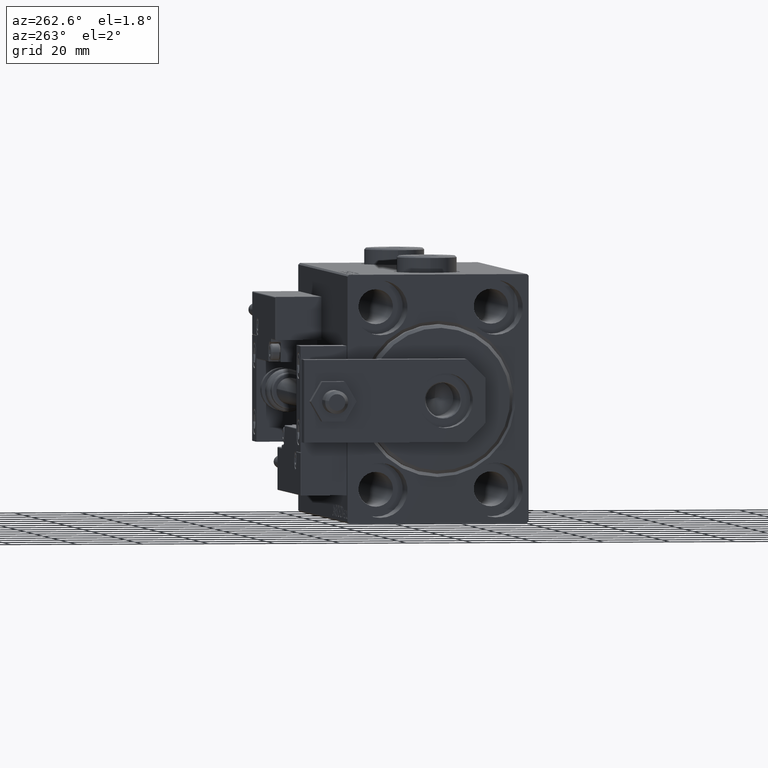
[diagram: clean part render]
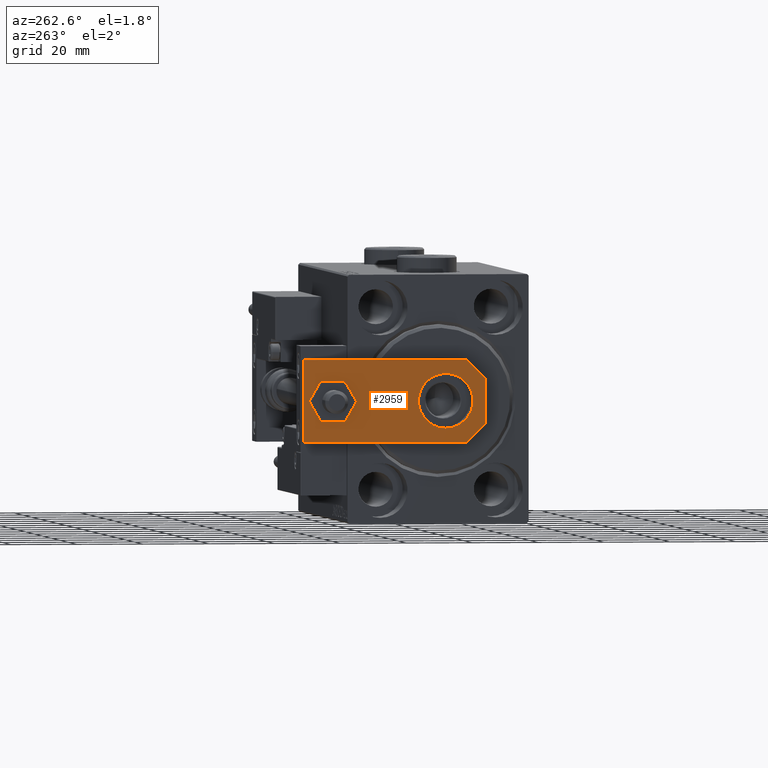
[diagram: same view with one face highlighted and labeled with its STEP entity id]
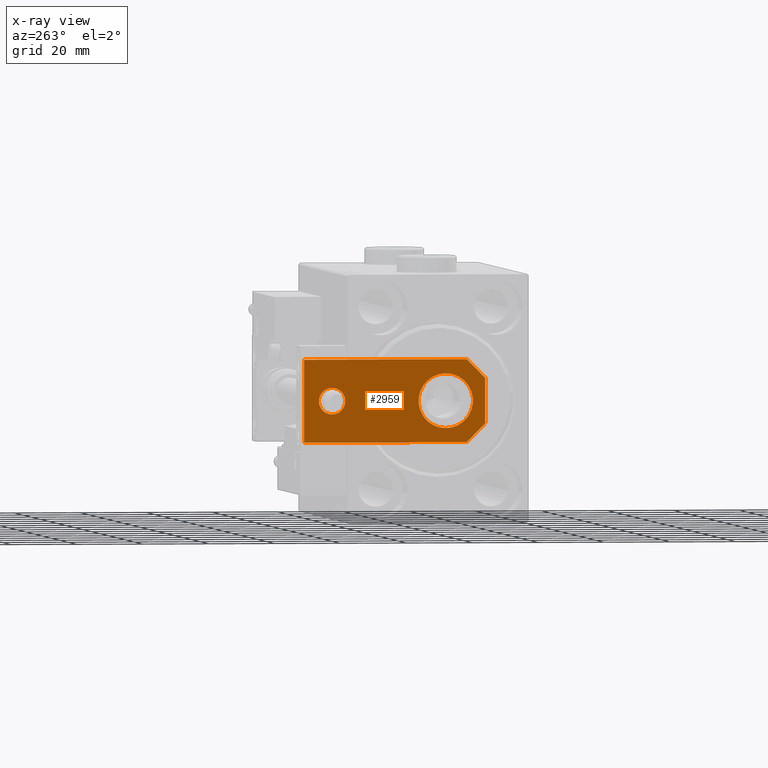
[diagram: x-ray of the same camera — body ghosted, the highlighted face saturated]
A machine part, auxiliary view. The second image highlights one B-rep face of the part: STEP entity #2959.
The next image is the same camera in x-ray: the body ghosted, the highlighted face saturated — about 0% of this face is hidden behind the body in this view.
In plain terms, the highlighted planar face has unit normal (-1, 0, 0).
Its self-contained STEP definition (entity closure, byte-faithful):
#329 = DIRECTION ( 'NONE',  ( 0.000000000000000000, 0.000000000000000000, 1.000000000000000000 ) ) ;
#1325 = CARTESIAN_POINT ( 'NONE',  ( -12.50000000000000355, 5.660000000000005471, 6.000000000000000000 ) ) ;
#1827 = EDGE_LOOP ( 'NONE', ( #32320, #16107, #46667, #24225, #42517, #40714 ) ) ;
#2916 = VERTEX_POINT ( 'NONE', #32446 ) ;
#2959 = ADVANCED_FACE ( 'NONE', ( #49578, #17565, #30298 ), #38390, .T. ) ;
#3109 = CARTESIAN_POINT ( 'NONE',  ( -9.629649721936179265E-32, 11.99999999999999645, 6.000000000000000000 ) ) ;
#4260 = AXIS2_PLACEMENT_3D ( 'NONE', #8489, #48354, #8743 ) ;
#5022 = CARTESIAN_POINT ( 'NONE',  ( -1.432611055310774642E-16, 46.50000000000000000, 6.000000000000000000 ) ) ;
#5859 = CARTESIAN_POINT ( 'NONE',  ( 12.50000000000000355, 4.814824860968089633E-32, 6.000000000000000000 ) ) ;
#6104 = LINE ( 'NONE', #5859, #18919 ) ;
#6910 = DIRECTION ( 'NONE',  ( 0.7071067811865467956, -0.7071067811865483499, 0.000000000000000000 ) ) ;
#7800 = EDGE_CURVE ( 'NONE', #2916, #50664, #26108, .T. ) ;
#8239 = LINE ( 'NONE', #36143, #47583 ) ;
#8489 = CARTESIAN_POINT ( 'NONE',  ( -9.629649721936179265E-32, 11.99999999999999645, 6.000000000000000000 ) ) ;
#8743 = DIRECTION ( 'NONE',  ( 1.000000000000000000, 0.000000000000000000, 0.000000000000000000 ) ) ;
#9366 = LINE ( 'NONE', #40667, #44412 ) ;
#12152 = DIRECTION ( 'NONE',  ( -9.462128050782584375E-17, -1.000000000000000000, 0.000000000000000000 ) ) ;
#13904 = DIRECTION ( 'NONE',  ( -0.000000000000000000, 0.000000000000000000, 1.000000000000000000 ) ) ;
#13954 = ORIENTED_EDGE ( 'NONE', *, *, #38974, .F. ) ;
#14619 = ORIENTED_EDGE ( 'NONE', *, *, #30407, .F. ) ;
#14791 = CARTESIAN_POINT ( 'NONE',  ( 12.50000000000000355, 5.659999999999991260, 6.000000000000000000 ) ) ;
#16107 = ORIENTED_EDGE ( 'NONE', *, *, #47144, .T. ) ;
#16879 = AXIS2_PLACEMENT_3D ( 'NONE', #5022, #329, #46426 ) ;
#17565 = FACE_OUTER_BOUND ( 'NONE', #1827, .T. ) ;
#18919 = VECTOR ( 'NONE', #29071, 1000.000000000000000 ) ;
#19051 = DIRECTION ( 'NONE',  ( 1.000000000000000000, 0.000000000000000000, 0.000000000000000000 ) ) ;
#19121 = VECTOR ( 'NONE', #24459, 1000.000000000000000 ) ;
#20876 = DIRECTION ( 'NONE',  ( 1.000000000000000000, 0.000000000000000000, 0.000000000000000000 ) ) ;
#20906 = AXIS2_PLACEMENT_3D ( 'NONE', #46451, #13904, #50091 ) ;
#21950 = AXIS2_PLACEMENT_3D ( 'NONE', #3109, #39362, #19051 ) ;
#21975 = CARTESIAN_POINT ( 'NONE',  ( 12.50000000000000000, 55.00000000000000000, 6.000000000000000000 ) ) ;
#24225 = ORIENTED_EDGE ( 'NONE', *, *, #24646, .T. ) ;
#24459 = DIRECTION ( 'NONE',  ( -1.000000000000000000, 0.000000000000000000, 0.000000000000000000 ) ) ;
#24646 = EDGE_CURVE ( 'NONE', #27633, #41701, #43763, .T. ) ;
#26108 = CIRCLE ( 'NONE', #21950, 8.250000000000000000 ) ;
#26567 = EDGE_CURVE ( 'NONE', #45650, #26963, #43014, .T. ) ;
#26963 = VERTEX_POINT ( 'NONE', #50361 ) ;
#27384 = CARTESIAN_POINT ( 'NONE',  ( 12.50000000000000000, 55.00000000000000000, 6.000000000000000000 ) ) ;
#27633 = VERTEX_POINT ( 'NONE', #41850 ) ;
#29071 = DIRECTION ( 'NONE',  ( -6.308085367188389994E-17, 1.000000000000000000, 0.000000000000000000 ) ) ;
#30298 = FACE_BOUND ( 'NONE', #38064, .T. ) ;
#30322 = CARTESIAN_POINT ( 'NONE',  ( -6.840000000000012292, 4.814824860968089633E-32, 6.000000000000000000 ) ) ;
#30407 = EDGE_CURVE ( 'NONE', #50664, #2916, #42548, .T. ) ;
#31153 = CARTESIAN_POINT ( 'NONE',  ( 4.000000000000000888, 46.50000000000000000, 6.000000000000000000 ) ) ;
#31691 = EDGE_CURVE ( 'NONE', #26963, #47695, #8239, .T. ) ;
#32320 = ORIENTED_EDGE ( 'NONE', *, *, #31691, .T. ) ;
#32446 = CARTESIAN_POINT ( 'NONE',  ( -8.250000000000000000, 11.99999999999999645, 6.000000000000000000 ) ) ;
#35142 = CIRCLE ( 'NONE', #16879, 4.000000000000000888 ) ;
#35348 = EDGE_CURVE ( 'NONE', #43464, #36273, #35142, .T. ) ;
#35699 = CARTESIAN_POINT ( 'NONE',  ( 3.419999999999990603, -3.419999999999999485, 6.000000000000000000 ) ) ;
#36143 = CARTESIAN_POINT ( 'NONE',  ( -12.49999999999999822, 55.00000000000000000, 6.000000000000000000 ) ) ;
#36273 = VERTEX_POINT ( 'NONE', #37488 ) ;
#36473 = ORIENTED_EDGE ( 'NONE', *, *, #7800, .F. ) ;
#37488 = CARTESIAN_POINT ( 'NONE',  ( -4.000000000000000888, 46.50000000000000000, 6.000000000000000000 ) ) ;
#37955 = DIRECTION ( 'NONE',  ( 0.000000000000000000, 0.000000000000000000, 1.000000000000000000 ) ) ;
#38064 = EDGE_LOOP ( 'NONE', ( #36473, #14619 ) ) ;
#38390 = PLANE ( 'NONE',  #20906 ) ;
#38515 = EDGE_CURVE ( 'NONE', #44427, #27633, #9366, .T. ) ;
#38974 = EDGE_CURVE ( 'NONE', #36273, #43464, #49436, .T. ) ;
#39362 = DIRECTION ( 'NONE',  ( 0.000000000000000000, 0.000000000000000000, 1.000000000000000000 ) ) ;
#39640 = VECTOR ( 'NONE', #6910, 1000.000000000000000 ) ;
#40667 = CARTESIAN_POINT ( 'NONE',  ( -12.50000000000000355, 4.814824860968089633E-32, 6.000000000000000000 ) ) ;
#40714 = ORIENTED_EDGE ( 'NONE', *, *, #26567, .T. ) ;
#41138 = AXIS2_PLACEMENT_3D ( 'NONE', #41870, #37955, #50681 ) ;
#41701 = VERTEX_POINT ( 'NONE', #14791 ) ;
#41850 = CARTESIAN_POINT ( 'NONE',  ( 6.839999999999998970, 4.814824860968089633E-32, 6.000000000000000000 ) ) ;
#41870 = CARTESIAN_POINT ( 'NONE',  ( -1.432611055310774642E-16, 46.50000000000000000, 6.000000000000000000 ) ) ;
#42517 = ORIENTED_EDGE ( 'NONE', *, *, #49519, .T. ) ;
#42548 = CIRCLE ( 'NONE', #4260, 8.250000000000000000 ) ;
#43014 = LINE ( 'NONE', #27384, #19121 ) ;
#43464 = VERTEX_POINT ( 'NONE', #31153 ) ;
#43763 = LINE ( 'NONE', #35699, #46501 ) ;
#43893 = CARTESIAN_POINT ( 'NONE',  ( 8.250000000000000000, 11.99999999999999822, 6.000000000000000000 ) ) ;
#44412 = VECTOR ( 'NONE', #20876, 1000.000000000000000 ) ;
#44427 = VERTEX_POINT ( 'NONE', #30322 ) ;
#45650 = VERTEX_POINT ( 'NONE', #21975 ) ;
#46141 = EDGE_LOOP ( 'NONE', ( #13954, #47945 ) ) ;
#46426 = DIRECTION ( 'NONE',  ( 1.000000000000000000, 0.000000000000000000, 0.000000000000000000 ) ) ;
#46451 = CARTESIAN_POINT ( 'NONE',  ( 0.000000000000000000, 0.000000000000000000, 6.000000000000000000 ) ) ;
#46501 = VECTOR ( 'NONE', #51564, 1000.000000000000114 ) ;
#46667 = ORIENTED_EDGE ( 'NONE', *, *, #38515, .T. ) ;
#47144 = EDGE_CURVE ( 'NONE', #47695, #44427, #50165, .T. ) ;
#47583 = VECTOR ( 'NONE', #12152, 1000.000000000000000 ) ;
#47695 = VERTEX_POINT ( 'NONE', #1325 ) ;
#47945 = ORIENTED_EDGE ( 'NONE', *, *, #35348, .F. ) ;
#48354 = DIRECTION ( 'NONE',  ( 0.000000000000000000, 0.000000000000000000, 1.000000000000000000 ) ) ;
#49436 = CIRCLE ( 'NONE', #41138, 4.000000000000000888 ) ;
#49519 = EDGE_CURVE ( 'NONE', #41701, #45650, #6104, .T. ) ;
#49578 = FACE_BOUND ( 'NONE', #46141, .T. ) ;
#49653 = CARTESIAN_POINT ( 'NONE',  ( -3.420000000000013696, -3.420000000000006146, 6.000000000000000000 ) ) ;
#50091 = DIRECTION ( 'NONE',  ( 1.000000000000000000, 0.000000000000000000, 0.000000000000000000 ) ) ;
#50165 = LINE ( 'NONE', #49653, #39640 ) ;
#50361 = CARTESIAN_POINT ( 'NONE',  ( -12.49999999999999822, 55.00000000000000000, 6.000000000000000000 ) ) ;
#50664 = VERTEX_POINT ( 'NONE', #43893 ) ;
#50681 = DIRECTION ( 'NONE',  ( 1.000000000000000000, 0.000000000000000000, 0.000000000000000000 ) ) ;
#51564 = DIRECTION ( 'NONE',  ( 0.7071067811865483499, 0.7071067811865465735, -0.000000000000000000 ) ) ;